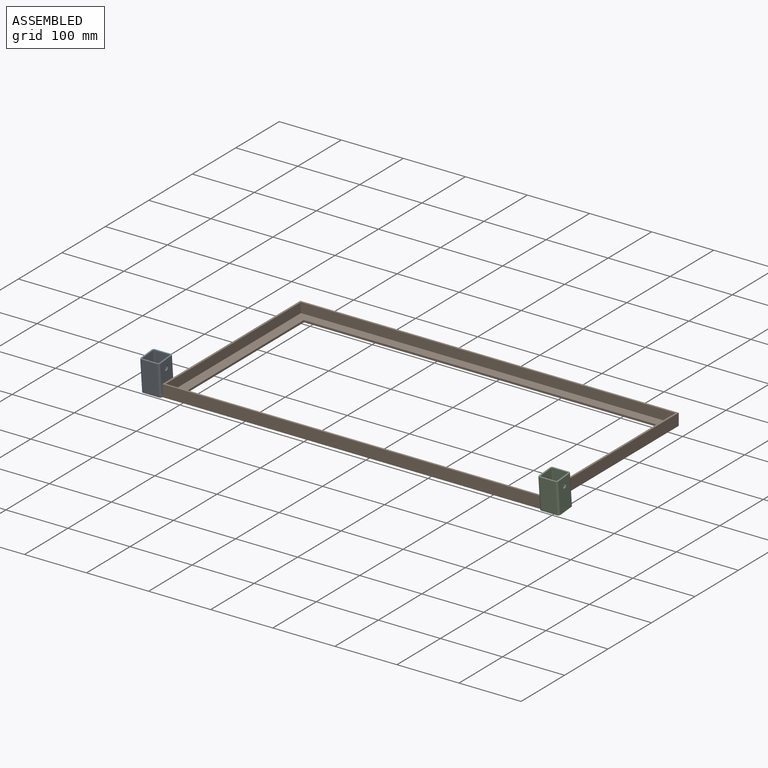
[diagram: assembled view]
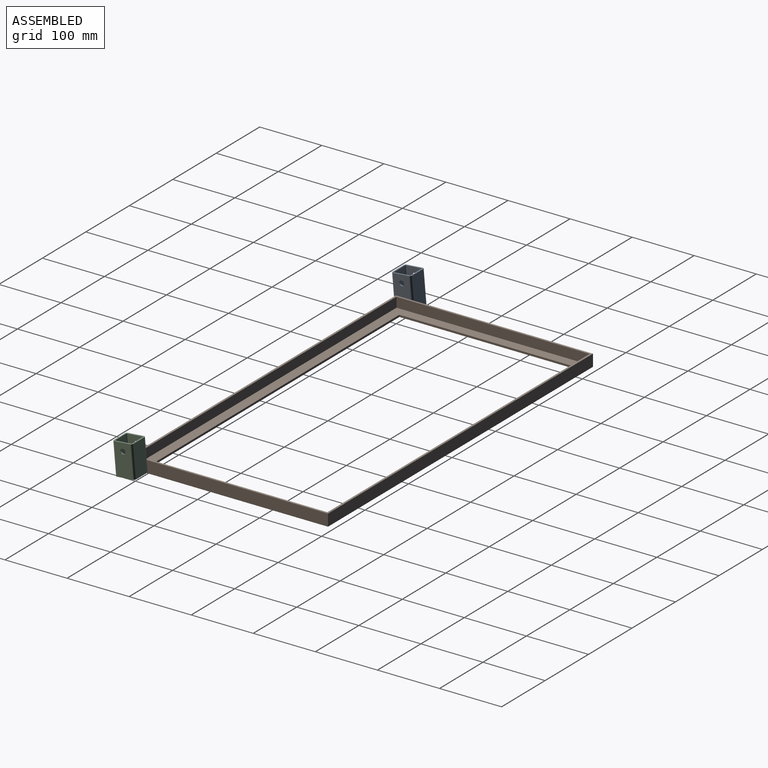
[diagram: assembled view, second angle]
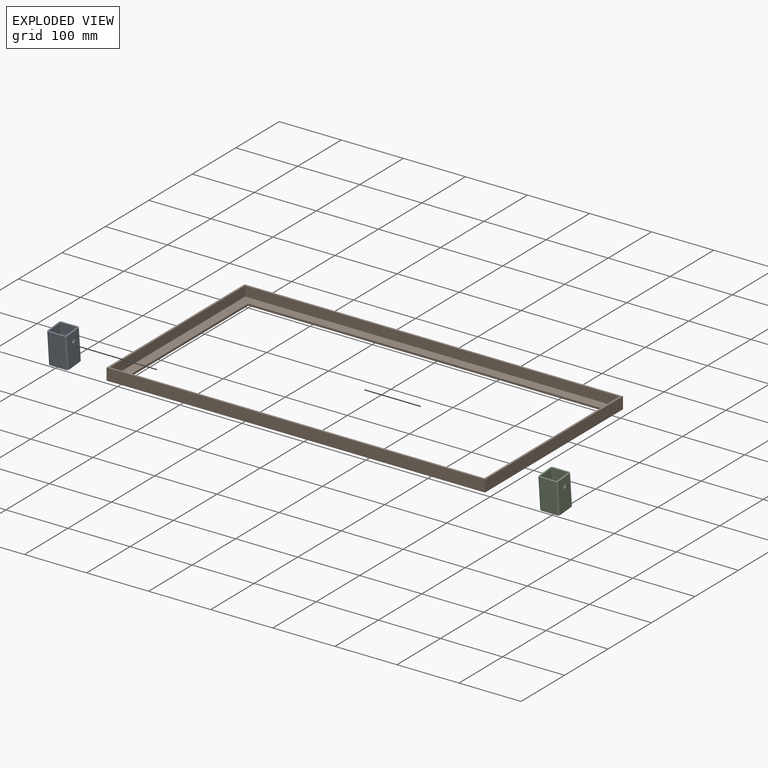
[diagram: exploded view]
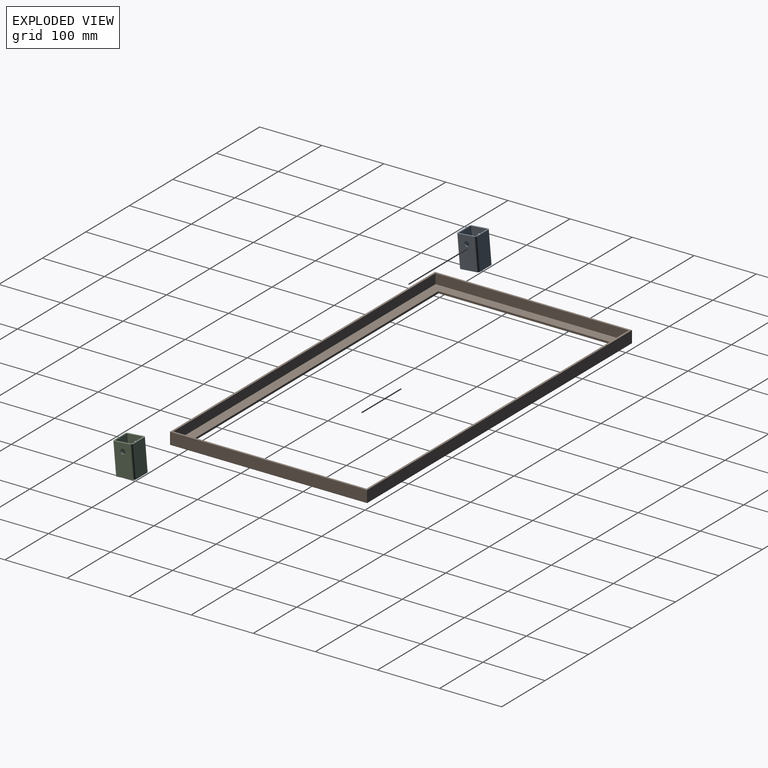
[diagram: exploded view, second angle]
ASSEMBLY  parts=3 mates=2
PART A: 20 faces, bbox 31.8x31.8x50.8 mm
  f0: plane 50.8x25.4mm, normal (1,0,0), area 1290.3mm2, adj f1,f15,f16,f17
  f1: cylinder r=3.17mm len=50.8mm, axis (0,0,-1), area 253.4mm2, adj f0,f2,f16,f17
  f2: plane 50.8x25.4mm, normal (0,1,0), area 1240.7mm2, adj f1,f3,f16,f17,f18
  f3: cylinder r=3.17mm len=50.8mm, axis (0,0,-1), area 253.4mm2, adj f2,f4,f16,f17
  f4: plane 50.8x25.4mm, normal (-1,0,0), area 1290.3mm2, adj f3,f5,f16,f17
  f5: cylinder r=3.17mm len=50.8mm, axis (0,0,-1), area 253.4mm2, adj f4,f6,f16,f17
  f6: plane 50.8x25.4mm, normal (0,-1,0), area 1240.7mm2, adj f5,f15,f16,f17,f19
  f7: cylinder r=0.76mm len=50.8mm, axis (0,0,-1), area 60.8mm2, adj f8,f14,f16,f17
  f8: plane 50.8x25.4mm, normal (-1,0,0), area 1290.3mm2, adj f7,f9,f16,f17
  f9: cylinder r=0.76mm len=50.8mm, axis (0,0,-1), area 60.8mm2, adj f8,f10,f16,f17
  f10: plane 50.8x25.4mm, normal (0,1,0), area 1240.7mm2, adj f9,f11,f16,f17,f19
  f11: cylinder r=0.76mm len=50.8mm, axis (0,0,-1), area 60.8mm2, adj f10,f12,f16,f17
  f12: plane 50.8x25.4mm, normal (1,0,0), area 1290.3mm2, adj f11,f13,f16,f17
  f13: cylinder r=0.76mm len=50.8mm, axis (0,0,-1), area 60.8mm2, adj f12,f14,f16,f17
  f14: plane 50.8x25.4mm, normal (0,-1,0), area 1240.7mm2, adj f7,f13,f16,f17,f18
  f15: cylinder r=3.17mm len=50.8mm, axis (0,0,-1), area 253.4mm2, adj f0,f6,f16,f17
  f16: plane 31.75x31.75mm, normal (0,0,1), area 275mm2, adj f0,f1,f2,f3,f4,f5,f6,f7
  f17: plane 31.75x31.75mm, normal (0,0,-1), area 275mm2, adj f0,f1,f2,f3,f4,f5,f6,f7
  f18: cylinder r=3.98mm len=7.95mm, axis (0,-1,0), area 60.3mm2, adj f2,f14
  f19: cylinder r=3.98mm len=7.95mm, axis (0,-1,0), area 60.3mm2, adj f6,f10
PART B: 15 faces, bbox 609.6x317.5x19.1 mm
  f0: plane 609.6x317.5mm, normal (0,0,1), area 5846.8mm2, adj f5,f6,f7,f8,f10,f11,f12,f13
  f1: plane 571.5x3.18mm, normal (0,1,0), area 1814.5mm2, adj f2,f4,f9,f14
  f2: plane 279.4x3.18mm, normal (-1,0,0), area 887.1mm2, adj f1,f3,f9,f14
  f3: plane 571.5x3.18mm, normal (0,-1,0), area 1814.5mm2, adj f2,f4,f9,f14
  f4: plane 279.4x3.18mm, normal (1,0,0), area 887.1mm2, adj f1,f3,f9,f14
  f5: plane 317.5x19.05mm, normal (-1,0,0), area 6048.4mm2, adj f0,f6,f8,f9
  f6: plane 609.6x19.05mm, normal (0,-1,0), area 11612.9mm2, adj f0,f5,f7,f9
  f7: plane 317.5x19.05mm, normal (1,0,0), area 6048.4mm2, adj f0,f6,f8,f9
  f8: plane 609.6x19.05mm, normal (0,1,0), area 11612.9mm2, adj f0,f5,f7,f9
  f9: plane 609.6x317.5mm, normal (0,0,-1), area 33870.9mm2, adj f1,f2,f3,f4,f5,f6,f7,f8
  f10: plane 311.15x15.88mm, normal (1,0,0), area 4939.5mm2, adj f0,f11,f13,f14
  f11: plane 603.25x15.88mm, normal (0,1,0), area 9576.6mm2, adj f0,f10,f12,f14
  f12: plane 311.15x15.88mm, normal (-1,0,0), area 4939.5mm2, adj f0,f11,f13,f14
  f13: plane 603.25x15.88mm, normal (0,-1,0), area 9576.6mm2, adj f0,f10,f12,f14
  f14: plane 603.25x311.15mm, normal (0,0,1), area 28024.1mm2, adj f1,f2,f3,f4,f10,f11,f12,f13
PART C: same geometry as A
PLACE A rot(axis=(0.04,-0.04,1),90.1deg) t=(-18.58,-16.62,-37.41)mm
PLACE B t=(-18.58,-13.46,-37.14)mm
PLACE C rot(axis=(0.04,0.04,-1),90.1deg) t=(591.02,15.01,-34.65)mm
MATE cylindrical A.f6 <-> B.f5  axis (1,0,0) through (-18.58,-13.46,-37.14)mm
MATE cylindrical C.f6 <-> B.f7  axis (-1,0,0) through (591.02,-13.46,-37.14)mm
